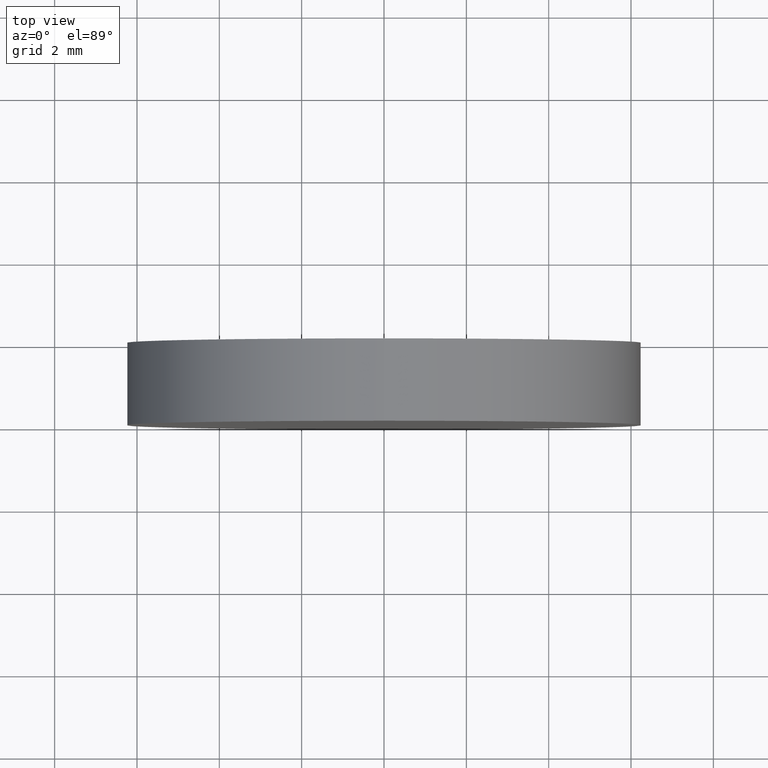
[diagram: clean part render]
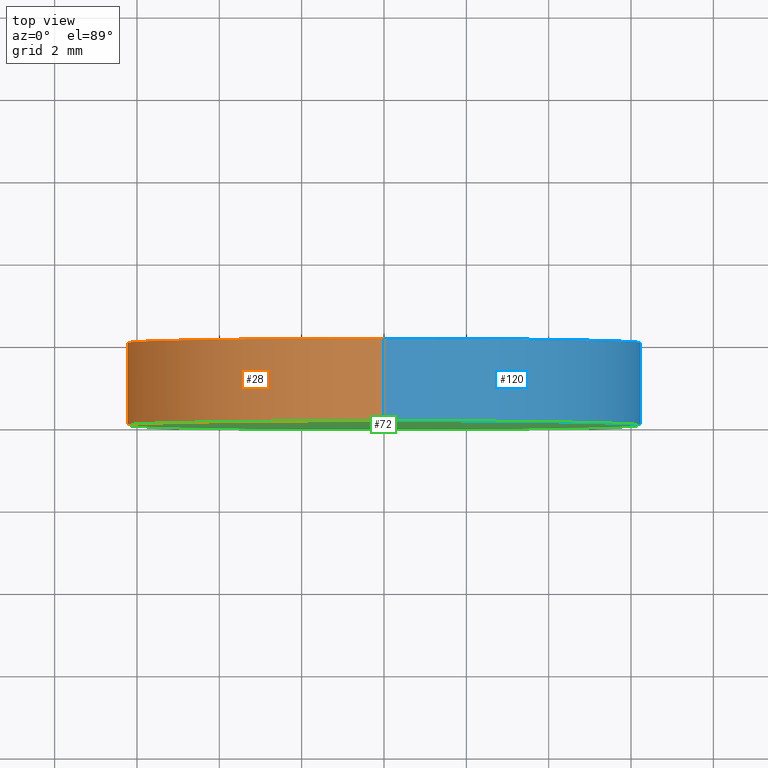
[diagram: same view with three faces highlighted in distinct colors, each labeled with its STEP entity id]
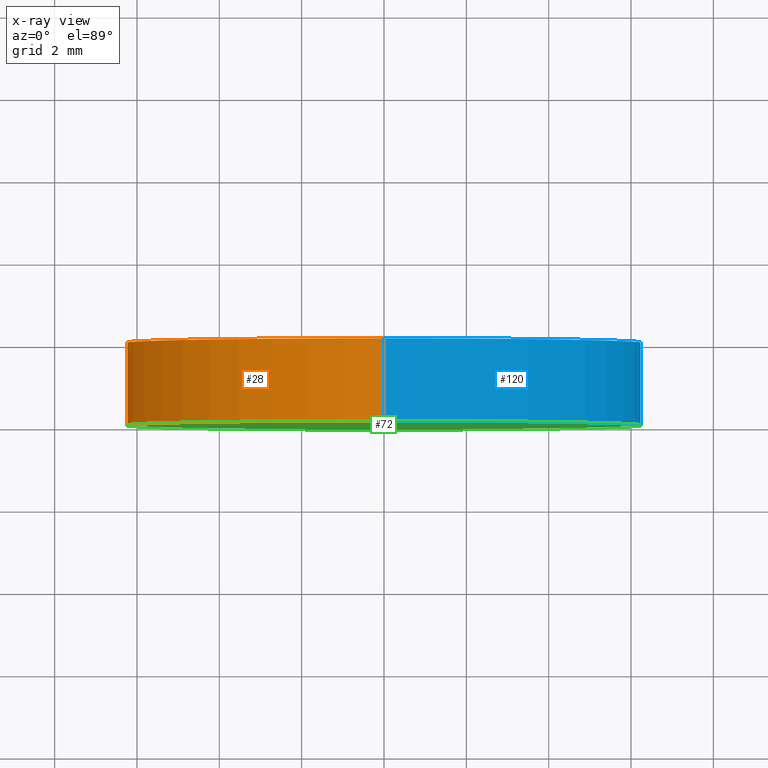
[diagram: x-ray of the same camera — body ghosted, the three highlighted faces saturated]
A machine part, top view with three faces highlighted in distinct colors.
The next image is the same camera in x-ray (body ghosted, the three faces saturated) — at least one of them is partly hidden behind the body in this view.
Their STEP definitions:

[orange] entity #28 — the highlighted cylindrical surface (partial cylindrical patch) has radius 6.25 mm, axis along (-0, -1, -0).
#6 = ORIENTED_EDGE ( 'NONE', *, *, #27, .F. ) ;
#13 = ORIENTED_EDGE ( 'NONE', *, *, #119, .T. ) ;
#18 = VECTOR ( 'NONE', #96, 1000.000000000000000 ) ;
#23 = CYLINDRICAL_SURFACE ( 'NONE', #63, 6.250000000000000000 ) ;
#25 = AXIS2_PLACEMENT_3D ( 'NONE', #49, #109, #32 ) ;
#27 = EDGE_CURVE ( 'NONE', #54, #122, #112, .T. ) ;
#28 = ADVANCED_FACE ( 'NONE', ( #81 ), #23, .T. ) ;
#32 = DIRECTION ( 'NONE',  ( 0.0000000000000000000, 0.0000000000000000000, 1.000000000000000000 ) ) ;
#34 = CARTESIAN_POINT ( 'NONE',  ( 7.654042494670957600E-016, 2.000000000000000000, 6.250000000000000000 ) ) ;
#36 = EDGE_CURVE ( 'NONE', #105, #122, #55, .T. ) ;
#41 = ORIENTED_EDGE ( 'NONE', *, *, #36, .T. ) ;
#43 = EDGE_CURVE ( 'NONE', #46, #54, #83, .T. ) ;
#46 = VERTEX_POINT ( 'NONE', #79 ) ;
#47 = CARTESIAN_POINT ( 'NONE',  ( 0.0000000000000000000, 2.000000000000000000, -6.250000000000000000 ) ) ;
#49 = CARTESIAN_POINT ( 'NONE',  ( 0.0000000000000000000, 2.000000000000000000, 0.0000000000000000000 ) ) ;
#50 = DIRECTION ( 'NONE',  ( 0.0000000000000000000, 0.0000000000000000000, -1.000000000000000000 ) ) ;
#54 = VERTEX_POINT ( 'NONE', #34 ) ;
#55 = CIRCLE ( 'NONE', #113, 6.250000000000000000 ) ;
#61 = DIRECTION ( 'NONE',  ( -0.0000000000000000000, -1.000000000000000000, -0.0000000000000000000 ) ) ;
#63 = AXIS2_PLACEMENT_3D ( 'NONE', #69, #61, #50 ) ;
#67 = DIRECTION ( 'NONE',  ( 0.0000000000000000000, 1.000000000000000000, 0.0000000000000000000 ) ) ;
#69 = CARTESIAN_POINT ( 'NONE',  ( 0.0000000000000000000, 2.000000000000000000, 0.0000000000000000000 ) ) ;
#76 = CARTESIAN_POINT ( 'NONE',  ( 7.654042494670957600E-016, 0.0000000000000000000, 6.250000000000000000 ) ) ;
#79 = CARTESIAN_POINT ( 'NONE',  ( 0.0000000000000000000, 2.000000000000000000, -6.250000000000000000 ) ) ;
#81 = FACE_OUTER_BOUND ( 'NONE', #101, .T. ) ;
#83 = CIRCLE ( 'NONE', #25, 6.250000000000000000 ) ;
#96 = DIRECTION ( 'NONE',  ( -0.0000000000000000000, -1.000000000000000000, -0.0000000000000000000 ) ) ;
#97 = CARTESIAN_POINT ( 'NONE',  ( 0.0000000000000000000, 0.0000000000000000000, -6.250000000000000000 ) ) ;
#101 = EDGE_LOOP ( 'NONE', ( #6, #129, #13, #41 ) ) ;
#103 = LINE ( 'NONE', #47, #18 ) ;
#105 = VERTEX_POINT ( 'NONE', #97 ) ;
#109 = DIRECTION ( 'NONE',  ( 0.0000000000000000000, 1.000000000000000000, 0.0000000000000000000 ) ) ;
#112 = LINE ( 'NONE', #117, #133 ) ;
#113 = AXIS2_PLACEMENT_3D ( 'NONE', #139, #67, #126 ) ;
#117 = CARTESIAN_POINT ( 'NONE',  ( 7.654042494670957600E-016, 2.000000000000000000, 6.250000000000000000 ) ) ;
#119 = EDGE_CURVE ( 'NONE', #46, #105, #103, .T. ) ;
#122 = VERTEX_POINT ( 'NONE', #76 ) ;
#126 = DIRECTION ( 'NONE',  ( 0.0000000000000000000, 0.0000000000000000000, 1.000000000000000000 ) ) ;
#128 = DIRECTION ( 'NONE',  ( -0.0000000000000000000, -1.000000000000000000, -0.0000000000000000000 ) ) ;
#129 = ORIENTED_EDGE ( 'NONE', *, *, #43, .F. ) ;
#133 = VECTOR ( 'NONE', #128, 1000.000000000000000 ) ;
#139 = CARTESIAN_POINT ( 'NONE',  ( 0.0000000000000000000, 0.0000000000000000000, 0.0000000000000000000 ) ) ;

[blue] entity #120 — the highlighted cylindrical surface (partial cylindrical patch) has radius 6.25 mm, axis along (-0, -1, -0).
#9 = EDGE_CURVE ( 'NONE', #122, #105, #60, .T. ) ;
#11 = ORIENTED_EDGE ( 'NONE', *, *, #9, .T. ) ;
#14 = AXIS2_PLACEMENT_3D ( 'NONE', #106, #30, #94 ) ;
#18 = VECTOR ( 'NONE', #96, 1000.000000000000000 ) ;
#20 = DIRECTION ( 'NONE',  ( 0.0000000000000000000, 0.0000000000000000000, -1.000000000000000000 ) ) ;
#27 = EDGE_CURVE ( 'NONE', #54, #122, #112, .T. ) ;
#30 = DIRECTION ( 'NONE',  ( 0.0000000000000000000, 1.000000000000000000, 0.0000000000000000000 ) ) ;
#34 = CARTESIAN_POINT ( 'NONE',  ( 7.654042494670957600E-016, 2.000000000000000000, 6.250000000000000000 ) ) ;
#38 = CARTESIAN_POINT ( 'NONE',  ( 0.0000000000000000000, 0.0000000000000000000, 0.0000000000000000000 ) ) ;
#46 = VERTEX_POINT ( 'NONE', #79 ) ;
#47 = CARTESIAN_POINT ( 'NONE',  ( 0.0000000000000000000, 2.000000000000000000, -6.250000000000000000 ) ) ;
#54 = VERTEX_POINT ( 'NONE', #34 ) ;
#60 = CIRCLE ( 'NONE', #90, 6.250000000000000000 ) ;
#68 = DIRECTION ( 'NONE',  ( 0.0000000000000000000, 1.000000000000000000, 0.0000000000000000000 ) ) ;
#70 = EDGE_LOOP ( 'NONE', ( #95, #75, #11, #118 ) ) ;
#73 = CYLINDRICAL_SURFACE ( 'NONE', #107, 6.250000000000000000 ) ;
#75 = ORIENTED_EDGE ( 'NONE', *, *, #27, .T. ) ;
#76 = CARTESIAN_POINT ( 'NONE',  ( 7.654042494670957600E-016, 0.0000000000000000000, 6.250000000000000000 ) ) ;
#78 = DIRECTION ( 'NONE',  ( -0.0000000000000000000, -1.000000000000000000, -0.0000000000000000000 ) ) ;
#79 = CARTESIAN_POINT ( 'NONE',  ( 0.0000000000000000000, 2.000000000000000000, -6.250000000000000000 ) ) ;
#80 = FACE_OUTER_BOUND ( 'NONE', #70, .T. ) ;
#90 = AXIS2_PLACEMENT_3D ( 'NONE', #38, #68, #127 ) ;
#94 = DIRECTION ( 'NONE',  ( 0.0000000000000000000, 0.0000000000000000000, 1.000000000000000000 ) ) ;
#95 = ORIENTED_EDGE ( 'NONE', *, *, #134, .F. ) ;
#96 = DIRECTION ( 'NONE',  ( -0.0000000000000000000, -1.000000000000000000, -0.0000000000000000000 ) ) ;
#97 = CARTESIAN_POINT ( 'NONE',  ( 0.0000000000000000000, 0.0000000000000000000, -6.250000000000000000 ) ) ;
#100 = CIRCLE ( 'NONE', #14, 6.250000000000000000 ) ;
#103 = LINE ( 'NONE', #47, #18 ) ;
#105 = VERTEX_POINT ( 'NONE', #97 ) ;
#106 = CARTESIAN_POINT ( 'NONE',  ( 0.0000000000000000000, 2.000000000000000000, 0.0000000000000000000 ) ) ;
#107 = AXIS2_PLACEMENT_3D ( 'NONE', #108, #78, #20 ) ;
#108 = CARTESIAN_POINT ( 'NONE',  ( 0.0000000000000000000, 2.000000000000000000, 0.0000000000000000000 ) ) ;
#112 = LINE ( 'NONE', #117, #133 ) ;
#117 = CARTESIAN_POINT ( 'NONE',  ( 7.654042494670957600E-016, 2.000000000000000000, 6.250000000000000000 ) ) ;
#118 = ORIENTED_EDGE ( 'NONE', *, *, #119, .F. ) ;
#119 = EDGE_CURVE ( 'NONE', #46, #105, #103, .T. ) ;
#120 = ADVANCED_FACE ( 'NONE', ( #80 ), #73, .T. ) ;
#122 = VERTEX_POINT ( 'NONE', #76 ) ;
#127 = DIRECTION ( 'NONE',  ( 0.0000000000000000000, 0.0000000000000000000, 1.000000000000000000 ) ) ;
#128 = DIRECTION ( 'NONE',  ( -0.0000000000000000000, -1.000000000000000000, -0.0000000000000000000 ) ) ;
#133 = VECTOR ( 'NONE', #128, 1000.000000000000000 ) ;
#134 = EDGE_CURVE ( 'NONE', #54, #46, #100, .T. ) ;

[green] entity #72 — the highlighted planar face has unit normal (0, 1, 0).
#7 = DIRECTION ( 'NONE',  ( 0.0000000000000000000, -0.0000000000000000000, 1.000000000000000000 ) ) ;
#9 = EDGE_CURVE ( 'NONE', #122, #105, #60, .T. ) ;
#21 = CARTESIAN_POINT ( 'NONE',  ( 0.0000000000000000000, 0.0000000000000000000, 0.0000000000000000000 ) ) ;
#31 = AXIS2_PLACEMENT_3D ( 'NONE', #21, #88, #7 ) ;
#36 = EDGE_CURVE ( 'NONE', #105, #122, #55, .T. ) ;
#38 = CARTESIAN_POINT ( 'NONE',  ( 0.0000000000000000000, 0.0000000000000000000, 0.0000000000000000000 ) ) ;
#48 = ORIENTED_EDGE ( 'NONE', *, *, #9, .F. ) ;
#55 = CIRCLE ( 'NONE', #113, 6.250000000000000000 ) ;
#60 = CIRCLE ( 'NONE', #90, 6.250000000000000000 ) ;
#67 = DIRECTION ( 'NONE',  ( 0.0000000000000000000, 1.000000000000000000, 0.0000000000000000000 ) ) ;
#68 = DIRECTION ( 'NONE',  ( 0.0000000000000000000, 1.000000000000000000, 0.0000000000000000000 ) ) ;
#72 = ADVANCED_FACE ( 'NONE', ( #110 ), #116, .F. ) ;
#76 = CARTESIAN_POINT ( 'NONE',  ( 7.654042494670957600E-016, 0.0000000000000000000, 6.250000000000000000 ) ) ;
#88 = DIRECTION ( 'NONE',  ( 0.0000000000000000000, 1.000000000000000000, 0.0000000000000000000 ) ) ;
#90 = AXIS2_PLACEMENT_3D ( 'NONE', #38, #68, #127 ) ;
#92 = EDGE_LOOP ( 'NONE', ( #124, #48 ) ) ;
#97 = CARTESIAN_POINT ( 'NONE',  ( 0.0000000000000000000, 0.0000000000000000000, -6.250000000000000000 ) ) ;
#105 = VERTEX_POINT ( 'NONE', #97 ) ;
#110 = FACE_OUTER_BOUND ( 'NONE', #92, .T. ) ;
#113 = AXIS2_PLACEMENT_3D ( 'NONE', #139, #67, #126 ) ;
#116 = PLANE ( 'NONE',  #31 ) ;
#122 = VERTEX_POINT ( 'NONE', #76 ) ;
#124 = ORIENTED_EDGE ( 'NONE', *, *, #36, .F. ) ;
#126 = DIRECTION ( 'NONE',  ( 0.0000000000000000000, 0.0000000000000000000, 1.000000000000000000 ) ) ;
#127 = DIRECTION ( 'NONE',  ( 0.0000000000000000000, 0.0000000000000000000, 1.000000000000000000 ) ) ;
#139 = CARTESIAN_POINT ( 'NONE',  ( 0.0000000000000000000, 0.0000000000000000000, 0.0000000000000000000 ) ) ;